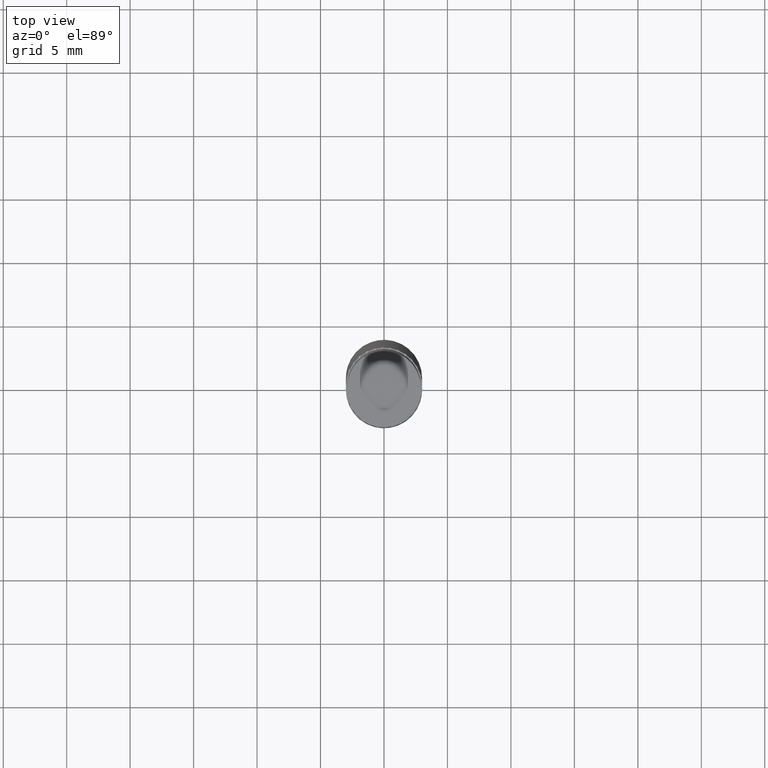
[diagram: clean part render]
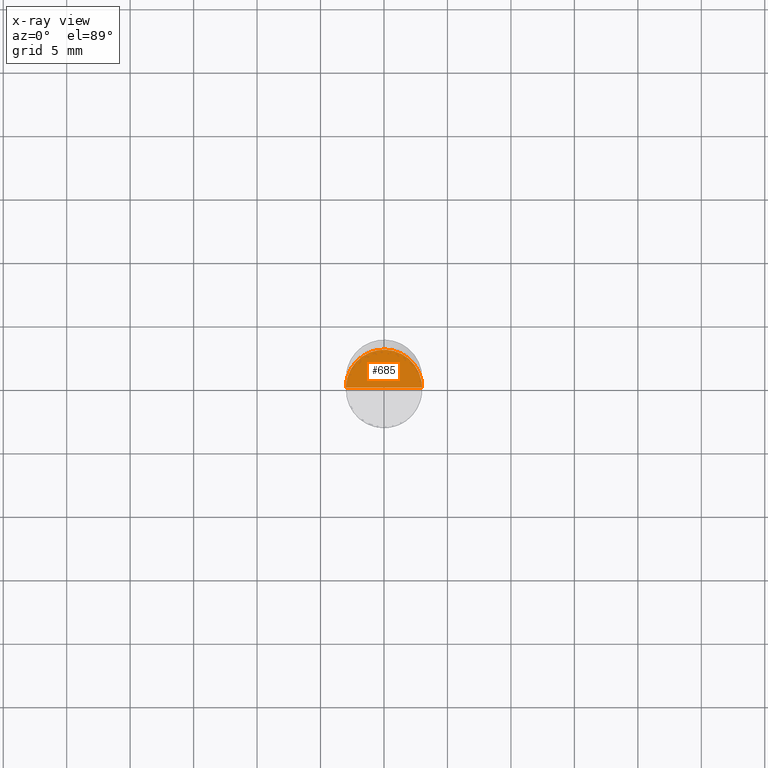
[diagram: x-ray — body ghosted, one internal face saturated and labeled with its STEP entity id]
A machine part, top view, then the same camera in x-ray: the body is ghosted and one INTERNAL B-rep face — a face not visible from any outside direction — is saturated and labeled: STEP entity #685.
In plain terms, the highlighted face is a freeform B-spline surface patch.
Its self-contained STEP definition (entity closure, byte-faithful):
#453=CARTESIAN_POINT('',(3.0,0.0,-9.625));
#454=CARTESIAN_POINT('',(3.0,3.0,-9.625));
#455=CARTESIAN_POINT('',(0.0,3.0,-9.625));
#456=CARTESIAN_POINT('',(-3.0,3.0,-9.625));
#457=CARTESIAN_POINT('',(-3.0,0.0,-9.625));
#458=CARTESIAN_POINT('',(0.0,0.0,-9.625));
#670=(
BOUNDED_SURFACE()
B_SPLINE_SURFACE(1,2,(
(#458,#458,#458,#458,#458),
(#453,#454,#455,#456,#457)
), .UNSPECIFIED.,.F.,.F.,.F.)
B_SPLINE_SURFACE_WITH_KNOTS((2,2),(3,2,3),(
0.0,1.0),(
0.0,0.5,1.0), .UNSPECIFIED.)
GEOMETRIC_REPRESENTATION_ITEM()
RATIONAL_B_SPLINE_SURFACE(((1.0,0.707106781187,1.0,0.707106781187,1.0),
(1.0,0.707106781187,1.0,0.707106781187,1.0)
))
REPRESENTATION_ITEM('')
SURFACE()
);
#671=(
BOUNDED_CURVE()
B_SPLINE_CURVE(1,(#457,#458),.UNSPECIFIED.,.F.,.F.)
B_SPLINE_CURVE_WITH_KNOTS((2,2),
(0.0,1.0),.UNSPECIFIED.)
CURVE()
GEOMETRIC_REPRESENTATION_ITEM()
RATIONAL_B_SPLINE_CURVE((1.0,1.0))
REPRESENTATION_ITEM('')
);
#672=(
BOUNDED_CURVE()
B_SPLINE_CURVE(1,(#458,#453),.UNSPECIFIED.,.F.,.F.)
B_SPLINE_CURVE_WITH_KNOTS((2,2),
(0.0,1.0),.UNSPECIFIED.)
CURVE()
GEOMETRIC_REPRESENTATION_ITEM()
RATIONAL_B_SPLINE_CURVE((1.0,1.0))
REPRESENTATION_ITEM('')
);
#673=(
BOUNDED_CURVE()
B_SPLINE_CURVE(2,(#453,#454,#455,#456,#457),.UNSPECIFIED.,.F.,.F.)
B_SPLINE_CURVE_WITH_KNOTS((3,2,3),
(0.0,0.5,1.0),.UNSPECIFIED.)
CURVE()
GEOMETRIC_REPRESENTATION_ITEM()
RATIONAL_B_SPLINE_CURVE((1.0,0.707106781187,1.0,0.707106781187,1.0))
REPRESENTATION_ITEM('')
);
#674=VERTEX_POINT('',#453);
#675=VERTEX_POINT('',#457);
#676=VERTEX_POINT('',#458);
#677=EDGE_CURVE('',#675,#676,#671,.T.);
#678=EDGE_CURVE('',#676,#674,#672,.T.);
#679=EDGE_CURVE('',#674,#675,#673,.T.);
#680=ORIENTED_EDGE('',*,*,#677,.T.);
#681=ORIENTED_EDGE('',*,*,#678,.T.);
#682=ORIENTED_EDGE('',*,*,#679,.T.);
#683=EDGE_LOOP('',(#680,#681,#682));
#684=FACE_OUTER_BOUND('',#683,.T.);
#685=ADVANCED_FACE('',(#684),#670,.T.);